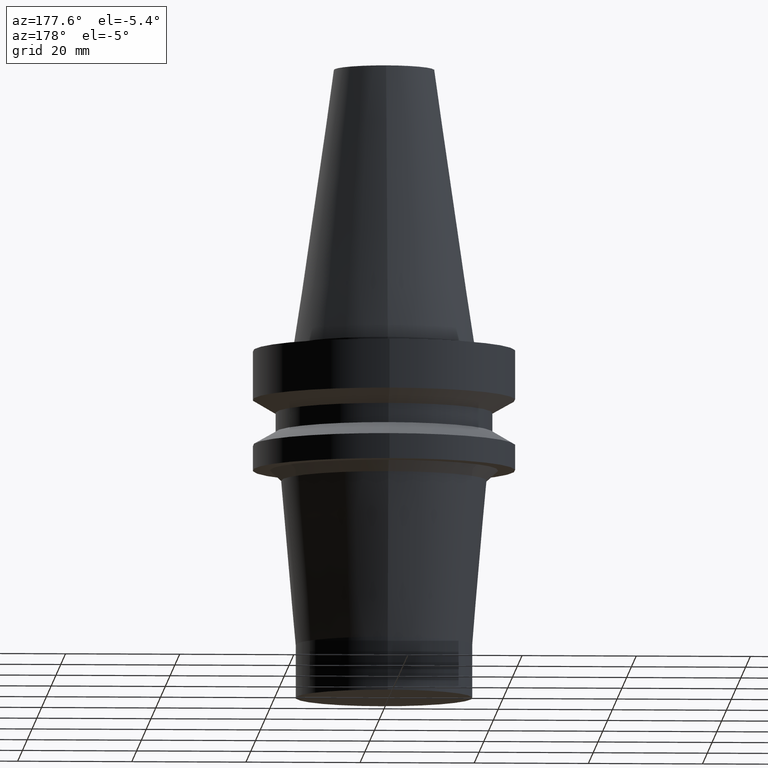
[diagram: clean part render]
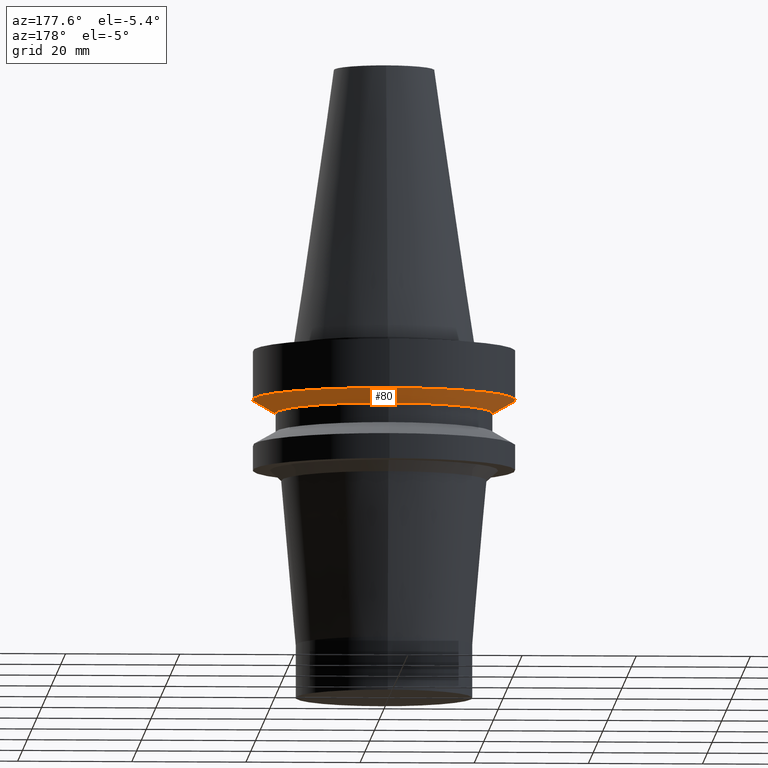
[diagram: same view with one face highlighted and labeled with its STEP entity id]
A machine part, auxiliary view. The second image highlights one B-rep face of the part: STEP entity #80.
In plain terms, the highlighted conical surface has half-angle 60 deg.
Its self-contained STEP definition (entity closure, byte-faithful):
#80=ADVANCED_FACE('',(#104,#105),#106,.T.);
#104=FACE_BOUND('',#144,.T.);
#105=FACE_BOUND('',#145,.T.);
#106=CONICAL_SURFACE('',#146,21.0,1.04719755058882);
#144=EDGE_LOOP('',(#194));
#145=EDGE_LOOP('',(#195));
#146=AXIS2_PLACEMENT_3D('',#196,#197,#198);
#194=ORIENTED_EDGE('',*,*,#243,.F.);
#195=ORIENTED_EDGE('',*,*,#242,.T.);
#196=CARTESIAN_POINT('',(6.58535479604966E-016,1.31707095920993E-015,-10.75470054));
#197=DIRECTION('',(-6.12323399573677E-017,-1.2246467991477E-016,1.0));
#198=DIRECTION('',(-1.23259516440783E-032,1.0,1.2246467991477E-016));
#242=EDGE_CURVE('',#259,#259,#260,.T.);
#243=EDGE_CURVE('',#261,#261,#262,.T.);
#259=VERTEX_POINT('',#285);
#260=CIRCLE('',#286,23.0);
#261=VERTEX_POINT('',#287);
#262=CIRCLE('',#288,19.0);
#285=CARTESIAN_POINT('',(5.87830463590729E-016,23.0,-9.6));
#286=AXIS2_PLACEMENT_3D('',#315,#316,#317);
#287=CARTESIAN_POINT('',(7.29240495619201E-016,19.0,-11.90940108));
#288=AXIS2_PLACEMENT_3D('',#318,#319,#320);
#315=CARTESIAN_POINT('',(5.8783046359073E-016,1.17566092718146E-015,-9.6));
#316=DIRECTION('',(6.12323399573677E-017,1.22464679914716E-016,-1.0));
#317=DIRECTION('',(-1.23259516440783E-032,1.0,1.22464679914716E-016));
#318=CARTESIAN_POINT('',(7.29240495619202E-016,1.4584809912384E-015,-11.90940108));
#319=DIRECTION('',(6.12323399573677E-017,1.2246467991475E-016,-1.0));
#320=DIRECTION('',(-1.23259516440783E-032,1.0,1.2246467991475E-016));